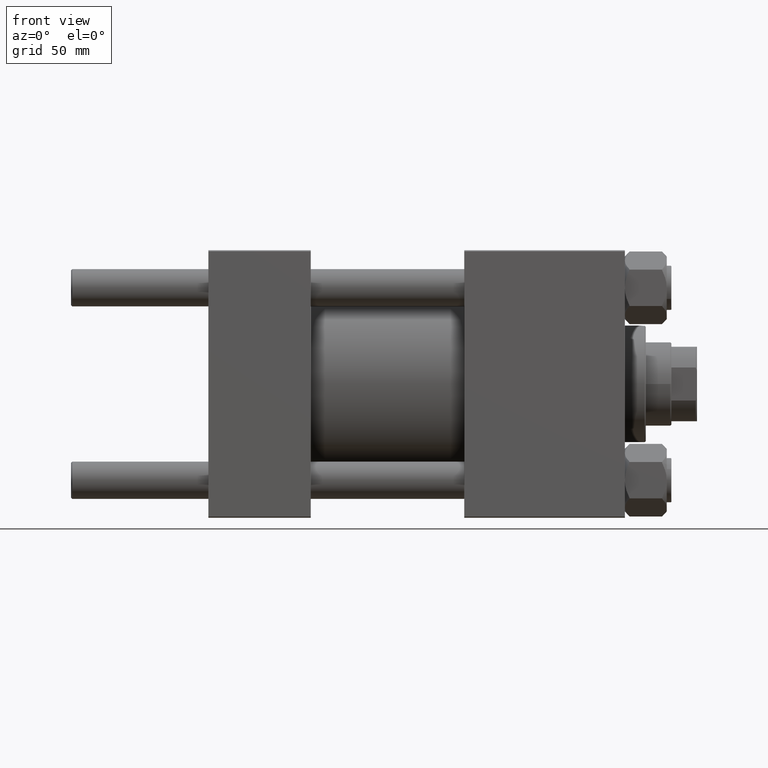
[diagram: clean part render]
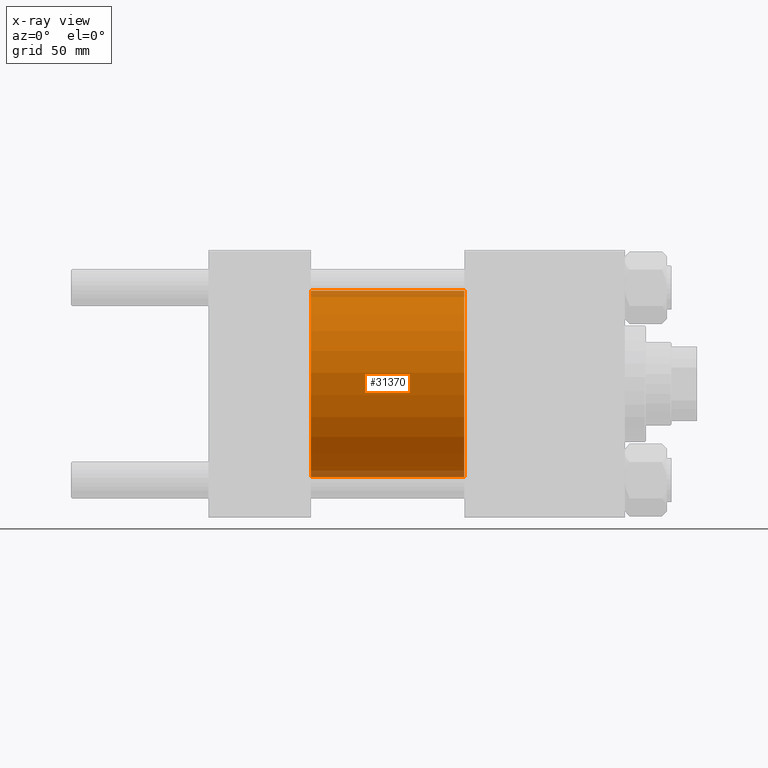
[diagram: x-ray — body ghosted, one internal face saturated and labeled with its STEP entity id]
A machine part, front view, then the same camera in x-ray: the body is ghosted and one INTERNAL B-rep face — a face not visible from any outside direction — is saturated and labeled: STEP entity #31370.
In plain terms, the highlighted cylindrical surface (partial cylindrical patch) has radius 40 mm, axis along (-1, -0, -0).
Its self-contained STEP definition (entity closure, byte-faithful):
#970 = VECTOR ( 'NONE', #38531, 1000.000000000000000 ) ;
#2656 = DIRECTION ( 'NONE',  ( 0.000000000000000000, 0.000000000000000000, -1.000000000000000000 ) ) ;
#3445 = CIRCLE ( 'NONE', #12382, 40.00000000000000000 ) ;
#4588 = AXIS2_PLACEMENT_3D ( 'NONE', #21394, #44739, #29504 ) ;
#5774 = ORIENTED_EDGE ( 'NONE', *, *, #16649, .F. ) ;
#5879 = CYLINDRICAL_SURFACE ( 'NONE', #4588, 40.00000000000000000 ) ;
#7241 = EDGE_LOOP ( 'NONE', ( #12412, #38996, #5774, #24766 ) ) ;
#8573 = CARTESIAN_POINT ( 'NONE',  ( 110.0000000000000000, 4.898587196589413026E-15, -40.00000000000000000 ) ) ;
#8885 = CARTESIAN_POINT ( 'NONE',  ( 110.0000000000000000, 4.898587196589413026E-15, -40.00000000000000000 ) ) ;
#9996 = EDGE_CURVE ( 'NONE', #48461, #33437, #34374, .T. ) ;
#10916 = AXIS2_PLACEMENT_3D ( 'NONE', #43762, #16615, #47325 ) ;
#11273 = CARTESIAN_POINT ( 'NONE',  ( 110.0000000000000000, 0.000000000000000000, 40.00000000000000000 ) ) ;
#12382 = AXIS2_PLACEMENT_3D ( 'NONE', #18406, #13848, #2656 ) ;
#12412 = ORIENTED_EDGE ( 'NONE', *, *, #22062, .T. ) ;
#13848 = DIRECTION ( 'NONE',  ( 1.000000000000000000, 0.000000000000000000, 0.000000000000000000 ) ) ;
#16615 = DIRECTION ( 'NONE',  ( 1.000000000000000000, 0.000000000000000000, 0.000000000000000000 ) ) ;
#16649 = EDGE_CURVE ( 'NONE', #33437, #31780, #3445, .T. ) ;
#18406 = CARTESIAN_POINT ( 'NONE',  ( 44.00000000000000000, 0.000000000000000000, 0.000000000000000000 ) ) ;
#18503 = CARTESIAN_POINT ( 'NONE',  ( 44.00000000000000000, 0.000000000000000000, 40.00000000000000000 ) ) ;
#21394 = CARTESIAN_POINT ( 'NONE',  ( 110.0000000000000000, 0.000000000000000000, 0.000000000000000000 ) ) ;
#22062 = EDGE_CURVE ( 'NONE', #48461, #42983, #23098, .T. ) ;
#23098 = CIRCLE ( 'NONE', #10916, 40.00000000000000000 ) ;
#24766 = ORIENTED_EDGE ( 'NONE', *, *, #9996, .F. ) ;
#25210 = FACE_OUTER_BOUND ( 'NONE', #7241, .T. ) ;
#27759 = VECTOR ( 'NONE', #34623, 1000.000000000000000 ) ;
#29504 = DIRECTION ( 'NONE',  ( 0.000000000000000000, 0.000000000000000000, 1.000000000000000000 ) ) ;
#31370 = ADVANCED_FACE ( 'NONE', ( #25210 ), #5879, .F. ) ;
#31780 = VERTEX_POINT ( 'NONE', #47343 ) ;
#33437 = VERTEX_POINT ( 'NONE', #18503 ) ;
#34374 = LINE ( 'NONE', #11273, #27759 ) ;
#34623 = DIRECTION ( 'NONE',  ( -1.000000000000000000, -0.000000000000000000, -0.000000000000000000 ) ) ;
#36976 = CARTESIAN_POINT ( 'NONE',  ( 110.0000000000000000, 0.000000000000000000, 40.00000000000000000 ) ) ;
#38531 = DIRECTION ( 'NONE',  ( -1.000000000000000000, -0.000000000000000000, -0.000000000000000000 ) ) ;
#38996 = ORIENTED_EDGE ( 'NONE', *, *, #47412, .T. ) ;
#42595 = LINE ( 'NONE', #8573, #970 ) ;
#42983 = VERTEX_POINT ( 'NONE', #8885 ) ;
#43762 = CARTESIAN_POINT ( 'NONE',  ( 110.0000000000000000, 0.000000000000000000, 0.000000000000000000 ) ) ;
#44739 = DIRECTION ( 'NONE',  ( -1.000000000000000000, -0.000000000000000000, -0.000000000000000000 ) ) ;
#47325 = DIRECTION ( 'NONE',  ( 0.000000000000000000, 0.000000000000000000, -1.000000000000000000 ) ) ;
#47343 = CARTESIAN_POINT ( 'NONE',  ( 44.00000000000000000, 4.898587196589413026E-15, -40.00000000000000000 ) ) ;
#47412 = EDGE_CURVE ( 'NONE', #42983, #31780, #42595, .T. ) ;
#48461 = VERTEX_POINT ( 'NONE', #36976 ) ;